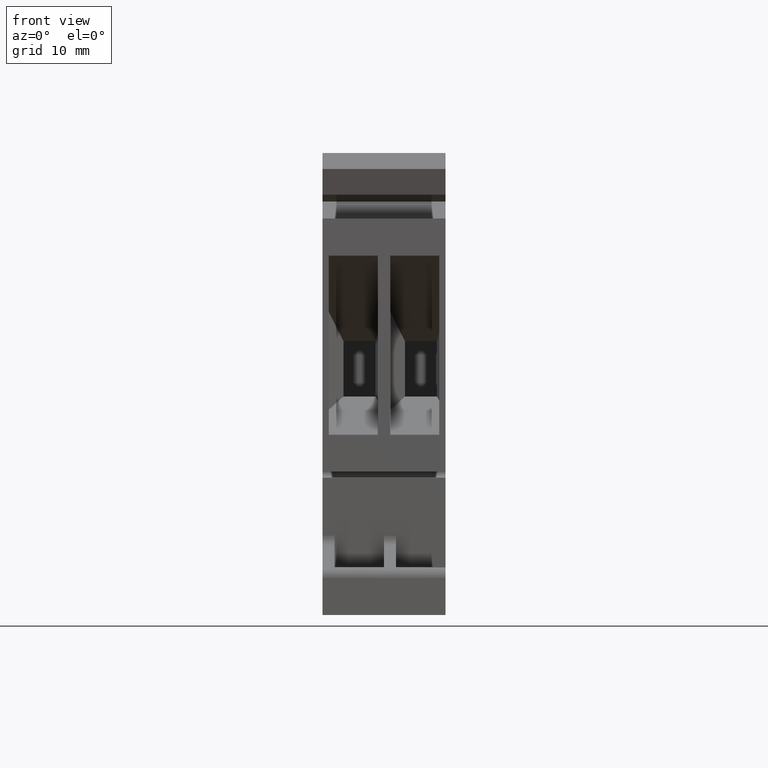
[diagram: clean part render]
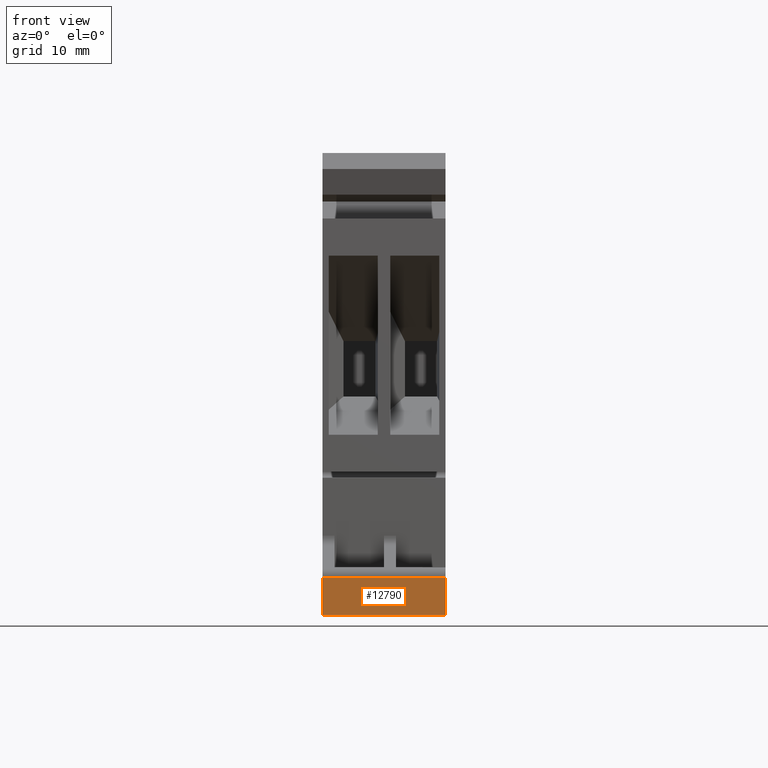
[diagram: same view with one face highlighted and labeled with its STEP entity id]
A machine part, front view. The second image highlights one B-rep face of the part: STEP entity #12790.
In plain terms, the highlighted planar face has unit normal (0, -1, -0).
Its self-contained STEP definition (entity closure, byte-faithful):
#4900=CARTESIAN_POINT('',(-44.8520985338077,4.22952375155828,10.3));
#4910=VERTEX_POINT('',#4900);
#4940=CARTESIAN_POINT('',(-44.8520985338077,15.7295237515583,10.3));
#4950=DIRECTION('',(0.,1.,0.));
#4960=VECTOR('',#4950,1.);
#4970=LINE('',#4940,#4960);
#4980=CARTESIAN_POINT('',(-44.8520985338384,7.32952375155828,10.3));
#4990=VERTEX_POINT('',#4980);
#5000=EDGE_CURVE('',#4910,#4990,#4970,.T.);
#6460=CARTESIAN_POINT('',(-44.8520985338077,7.32952375155828,
3.5527136788005E-15));
#6470=VERTEX_POINT('',#6460);
#6500=CARTESIAN_POINT('',(-44.8520985338077,9.53385075155828,
3.5527136788005E-15));
#6510=DIRECTION('',(0.,1.,0.));
#6520=VECTOR('',#6510,1.);
#6530=LINE('',#6500,#6520);
#6540=CARTESIAN_POINT('',(-44.8520985338077,4.22952375155828,
3.5527136788005E-15));
#6550=VERTEX_POINT('',#6540);
#6560=EDGE_CURVE('',#6550,#6470,#6530,.T.);
#12400=CARTESIAN_POINT('',(-44.8520985338077,7.32952375155828,
-3.33333332935837E-6));
#12410=DIRECTION('',(0.,0.,1.));
#12420=VECTOR('',#12410,1.);
#12430=LINE('',#12400,#12420);
#12440=EDGE_CURVE('',#6470,#4990,#12430,.T.);
#12630=CARTESIAN_POINT('',(-44.8520985338077,7.32952375155828,5.15));
#12640=DIRECTION('',(-1.,0.,0.));
#12650=DIRECTION('',(0.,1.,0.));
#12660=AXIS2_PLACEMENT_3D('',#12630,#12640,#12650);
#12670=PLANE('',#12660);
#12680=ORIENTED_EDGE('',*,*,#5000,.T.);
#12690=CARTESIAN_POINT('',(-44.8520985338077,4.22952375155828,
-5.14999999999999));
#12700=DIRECTION('',(0.,0.,-1.));
#12710=VECTOR('',#12700,1.);
#12720=LINE('',#12690,#12710);
#12730=EDGE_CURVE('',#4910,#6550,#12720,.T.);
#12740=ORIENTED_EDGE('',*,*,#12730,.F.);
#12750=ORIENTED_EDGE('',*,*,#6560,.F.);
#12760=ORIENTED_EDGE('',*,*,#12440,.F.);
#12770=EDGE_LOOP('',(#12760,#12750,#12740,#12680));
#12780=FACE_OUTER_BOUND('',#12770,.T.);
#12790=ADVANCED_FACE('',(#12780),#12670,.T.);